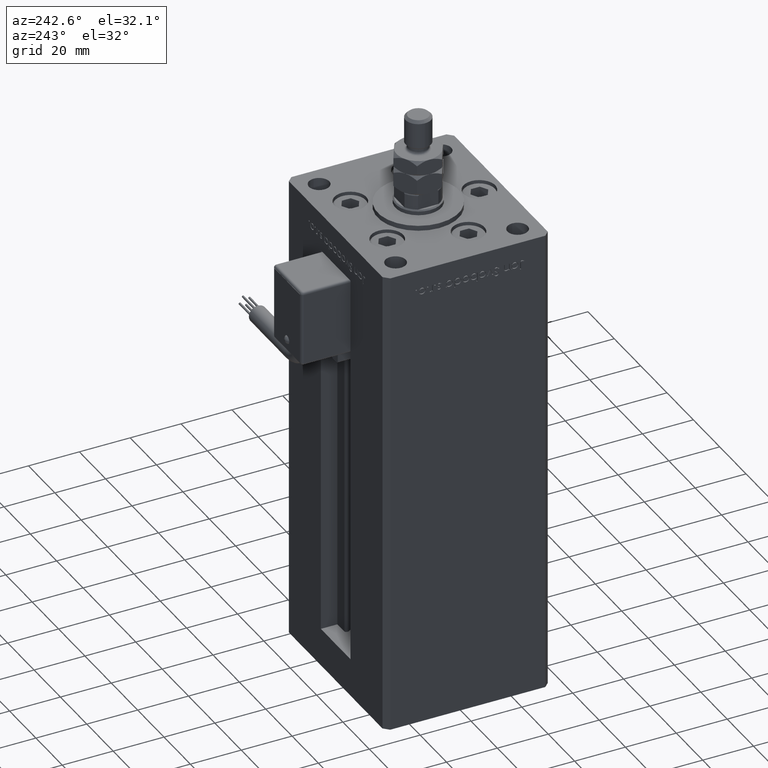
[diagram: clean part render]
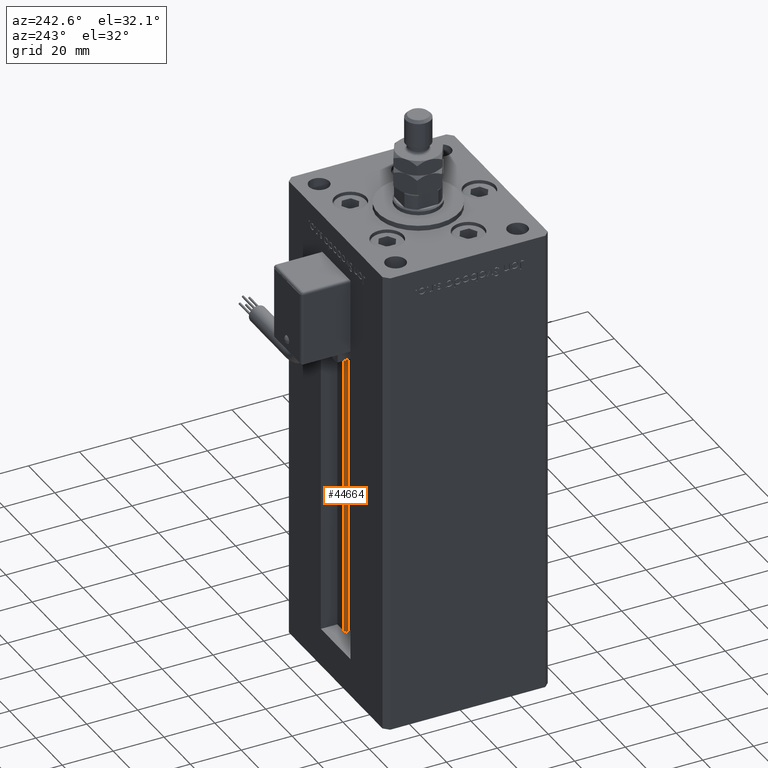
[diagram: same view with one face highlighted and labeled with its STEP entity id]
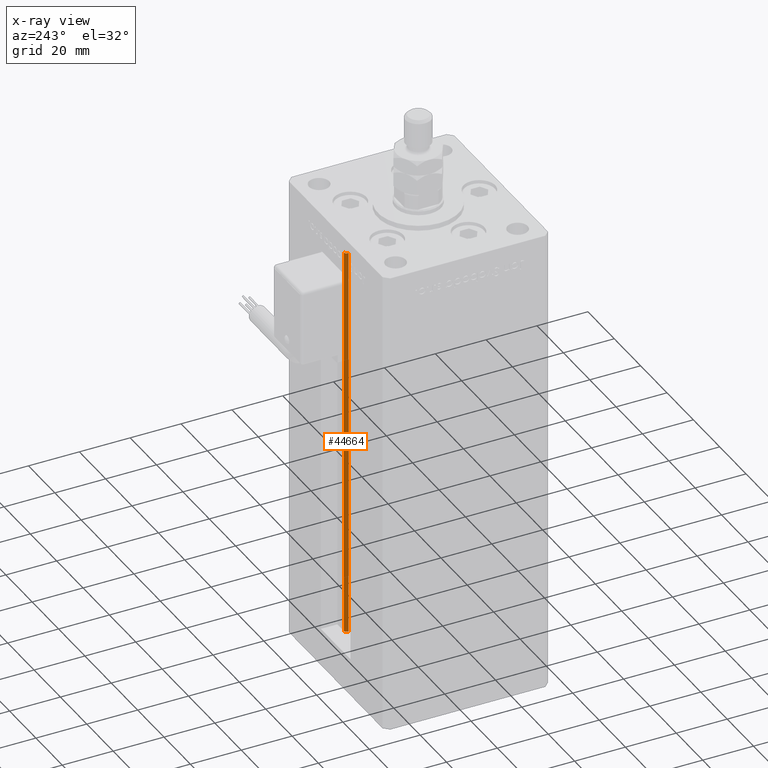
[diagram: x-ray of the same camera — body ghosted, the highlighted face saturated]
A machine part, auxiliary view. The second image highlights one B-rep face of the part: STEP entity #44664.
The next image is the same camera in x-ray: the body ghosted, the highlighted face saturated — about 0% of this face is hidden behind the body in this view.
In plain terms, the highlighted cylindrical surface (edge-blend (fillet) strip) has radius 0.9333 mm, axis along (0, 0, 1).
Its self-contained STEP definition (entity closure, byte-faithful):
#1112 = VERTEX_POINT ( 'NONE', #3414 ) ;
#1362 = LINE ( 'NONE', #45801, #38243 ) ;
#3414 = CARTESIAN_POINT ( 'NONE',  ( 6.183333333334001480, 25.99999999999999289, 0.000000000000000000 ) ) ;
#5203 = AXIS2_PLACEMENT_3D ( 'NONE', #8735, #21356, #35107 ) ;
#6689 = VERTEX_POINT ( 'NONE', #43646 ) ;
#6902 = EDGE_CURVE ( 'NONE', #6689, #56457, #12612, .T. ) ;
#8308 = DIRECTION ( 'NONE',  ( -0.000000000000000000, -0.000000000000000000, 1.000000000000000000 ) ) ;
#8735 = CARTESIAN_POINT ( 'NONE',  ( 6.183333333334001480, 25.06666666666599141, 0.000000000000000000 ) ) ;
#9569 = CYLINDRICAL_SURFACE ( 'NONE', #5203, 0.9333333333340008142 ) ;
#11365 = DIRECTION ( 'NONE',  ( -0.000000000000000000, -0.000000000000000000, -1.000000000000000000 ) ) ;
#12612 = LINE ( 'NONE', #16914, #50318 ) ;
#13590 = ORIENTED_EDGE ( 'NONE', *, *, #43046, .T. ) ;
#16914 = CARTESIAN_POINT ( 'NONE',  ( 5.375042956467947164, 24.59999999999899245, 0.000000000000000000 ) ) ;
#19084 = EDGE_CURVE ( 'NONE', #6689, #1112, #47913, .T. ) ;
#21337 = AXIS2_PLACEMENT_3D ( 'NONE', #36682, #11365, #46646 ) ;
#21356 = DIRECTION ( 'NONE',  ( -0.000000000000000000, -0.000000000000000000, 1.000000000000000000 ) ) ;
#25298 = AXIS2_PLACEMENT_3D ( 'NONE', #28000, #41181, #33134 ) ;
#28000 = CARTESIAN_POINT ( 'NONE',  ( 6.183333333334001480, 25.06666666666599141, 156.0000000000000000 ) ) ;
#33134 = DIRECTION ( 'NONE',  ( 1.000000000000000000, 0.000000000000000000, 0.000000000000000000 ) ) ;
#35107 = DIRECTION ( 'NONE',  ( 1.000000000000000000, 0.000000000000000000, 0.000000000000000000 ) ) ;
#36682 = CARTESIAN_POINT ( 'NONE',  ( 6.183333333334001480, 25.06666666666599141, 0.000000000000000000 ) ) ;
#36736 = VERTEX_POINT ( 'NONE', #53750 ) ;
#36864 = ORIENTED_EDGE ( 'NONE', *, *, #6902, .T. ) ;
#37217 = ORIENTED_EDGE ( 'NONE', *, *, #19084, .F. ) ;
#38243 = VECTOR ( 'NONE', #41491, 1000.000000000000000 ) ;
#38847 = FACE_OUTER_BOUND ( 'NONE', #44590, .T. ) ;
#41181 = DIRECTION ( 'NONE',  ( 0.000000000000000000, 0.000000000000000000, -1.000000000000000000 ) ) ;
#41491 = DIRECTION ( 'NONE',  ( -0.000000000000000000, -0.000000000000000000, 1.000000000000000000 ) ) ;
#43046 = EDGE_CURVE ( 'NONE', #56457, #36736, #50043, .T. ) ;
#43646 = CARTESIAN_POINT ( 'NONE',  ( 5.375042956467947164, 24.59999999999899245, 0.000000000000000000 ) ) ;
#44590 = EDGE_LOOP ( 'NONE', ( #44873, #37217, #36864, #13590 ) ) ;
#44664 = ADVANCED_FACE ( 'NONE', ( #38847 ), #9569, .T. ) ;
#44873 = ORIENTED_EDGE ( 'NONE', *, *, #49249, .F. ) ;
#45801 = CARTESIAN_POINT ( 'NONE',  ( 6.183333333334001480, 25.99999999999999289, 0.000000000000000000 ) ) ;
#46646 = DIRECTION ( 'NONE',  ( 1.000000000000000000, 0.000000000000000000, 0.000000000000000000 ) ) ;
#47913 = CIRCLE ( 'NONE', #21337, 0.9333333333340008142 ) ;
#49249 = EDGE_CURVE ( 'NONE', #1112, #36736, #1362, .T. ) ;
#50043 = CIRCLE ( 'NONE', #25298, 0.9333333333340008142 ) ;
#50318 = VECTOR ( 'NONE', #8308, 1000.000000000000000 ) ;
#53750 = CARTESIAN_POINT ( 'NONE',  ( 6.183333333334001480, 25.99999999999999289, 156.0000000000000000 ) ) ;
#56029 = CARTESIAN_POINT ( 'NONE',  ( 5.375042956467948052, 24.59999999999899245, 156.0000000000000000 ) ) ;
#56457 = VERTEX_POINT ( 'NONE', #56029 ) ;